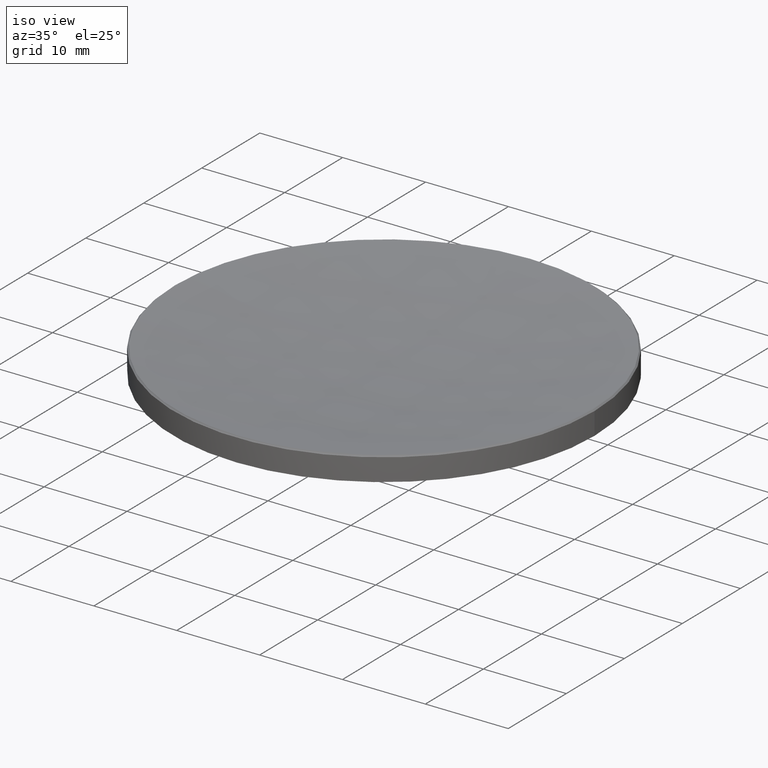
[diagram: clean part render]
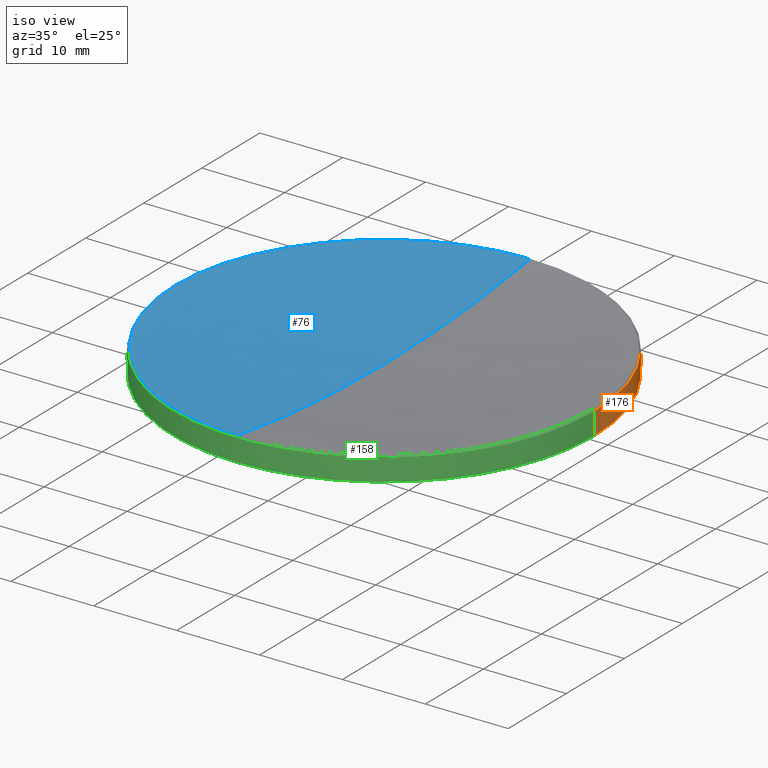
[diagram: same view with three faces highlighted in distinct colors, each labeled with its STEP entity id]
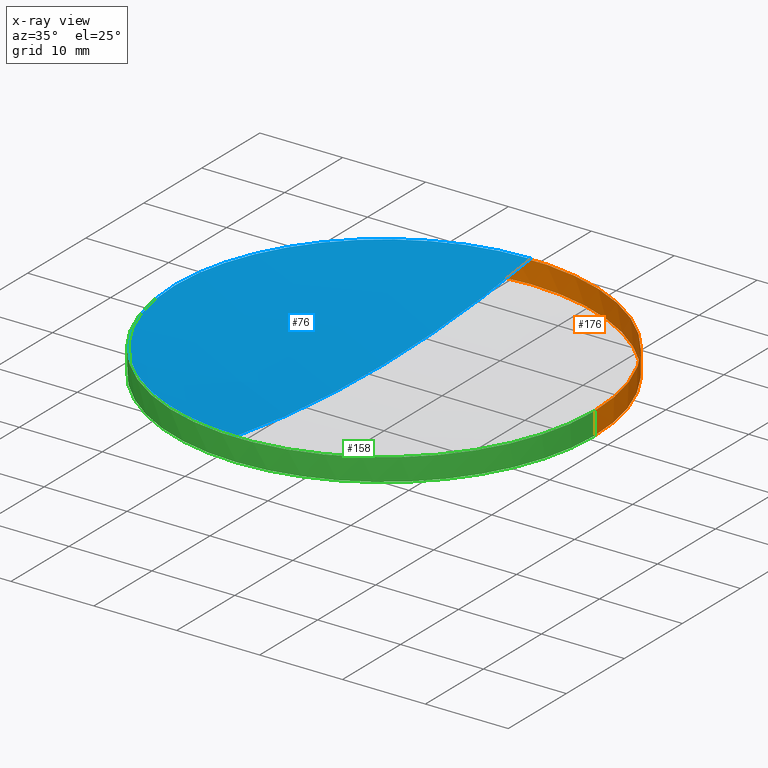
[diagram: x-ray of the same camera — body ghosted, the three highlighted faces saturated]
A machine part, iso view with three faces highlighted in distinct colors.
The next image is the same camera in x-ray (body ghosted, the three faces saturated) — at least one of them is partly hidden behind the body in this view.
Their STEP definitions:

[orange] entity #176 — the highlighted cylindrical surface (partial cylindrical patch) has radius 25.4 mm, axis along (-0, -0, -1).
#3 = EDGE_CURVE ( 'NONE', #21, #91, #188, .T. ) ;
#12 = DIRECTION ( 'NONE',  ( -0.000000000000000000, -0.000000000000000000, -1.000000000000000000 ) ) ;
#15 = CARTESIAN_POINT ( 'NONE',  ( -25.39999999999999858, 0.000000000000000000, 20.00000000000000000 ) ) ;
#20 = AXIS2_PLACEMENT_3D ( 'NONE', #270, #249, #204 ) ;
#21 = VERTEX_POINT ( 'NONE', #232 ) ;
#24 = ORIENTED_EDGE ( 'NONE', *, *, #271, .T. ) ;
#31 = AXIS2_PLACEMENT_3D ( 'NONE', #175, #81, #182 ) ;
#33 = CARTESIAN_POINT ( 'NONE',  ( 25.39999999999999503, 3.110602869834276471E-15, 13.00000000000000000 ) ) ;
#36 = VERTEX_POINT ( 'NONE', #33 ) ;
#45 = EDGE_CURVE ( 'NONE', #74, #36, #260, .T. ) ;
#47 = CARTESIAN_POINT ( 'NONE',  ( 0.000000000000000000, 0.000000000000000000, 20.00000000000000000 ) ) ;
#59 = CIRCLE ( 'NONE', #227, 25.39999999999999858 ) ;
#73 = ORIENTED_EDGE ( 'NONE', *, *, #3, .F. ) ;
#74 = VERTEX_POINT ( 'NONE', #210 ) ;
#79 = DIRECTION ( 'NONE',  ( -0.000000000000000000, -0.000000000000000000, -1.000000000000000000 ) ) ;
#81 = DIRECTION ( 'NONE',  ( -0.000000000000000000, -0.000000000000000000, 1.000000000000000000 ) ) ;
#91 = VERTEX_POINT ( 'NONE', #94 ) ;
#94 = CARTESIAN_POINT ( 'NONE',  ( -25.39999999999999503, 0.000000000000000000, 13.00000000000000000 ) ) ;
#107 = CIRCLE ( 'NONE', #31, 25.39999999999999503 ) ;
#115 = EDGE_CURVE ( 'NONE', #21, #74, #59, .T. ) ;
#139 = CIRCLE ( 'NONE', #20, 25.39999999999999503 ) ;
#144 = DIRECTION ( 'NONE',  ( 1.000000000000000000, 0.000000000000000000, 0.000000000000000000 ) ) ;
#146 = CARTESIAN_POINT ( 'NONE',  ( 0.000000000000000000, 0.000000000000000000, 15.69999999999996376 ) ) ;
#150 = VECTOR ( 'NONE', #211, 1000.000000000000000 ) ;
#173 = DIRECTION ( 'NONE',  ( 0.000000000000000000, 0.000000000000000000, -1.000000000000000000 ) ) ;
#175 = CARTESIAN_POINT ( 'NONE',  ( 0.000000000000000000, 0.000000000000000000, 13.00000000000000000 ) ) ;
#176 = ADVANCED_FACE ( 'NONE', ( #218 ), #198, .T. ) ;
#182 = DIRECTION ( 'NONE',  ( 1.000000000000000000, 0.000000000000000000, 0.000000000000000000 ) ) ;
#188 = LINE ( 'NONE', #15, #272 ) ;
#198 = CYLINDRICAL_SURFACE ( 'NONE', #278, 25.39999999999999858 ) ;
#204 = DIRECTION ( 'NONE',  ( 1.000000000000000000, 0.000000000000000000, 0.000000000000000000 ) ) ;
#210 = CARTESIAN_POINT ( 'NONE',  ( 25.39999999999999858, 3.110602869834276865E-15, 15.69999999999996376 ) ) ;
#211 = DIRECTION ( 'NONE',  ( -0.000000000000000000, -0.000000000000000000, -1.000000000000000000 ) ) ;
#218 = FACE_OUTER_BOUND ( 'NONE', #219, .T. ) ;
#219 = EDGE_LOOP ( 'NONE', ( #235, #264, #261, #24, #73 ) ) ;
#223 = DIRECTION ( 'NONE',  ( -1.000000000000000000, 0.000000000000000000, 0.000000000000000000 ) ) ;
#225 = CARTESIAN_POINT ( 'NONE',  ( 0.000000000000000000, 25.39999999999998437, 12.99999999999999822 ) ) ;
#227 = AXIS2_PLACEMENT_3D ( 'NONE', #146, #173, #144 ) ;
#230 = EDGE_CURVE ( 'NONE', #36, #240, #139, .T. ) ;
#232 = CARTESIAN_POINT ( 'NONE',  ( -25.39999999999999858, 0.000000000000000000, 15.69999999999996376 ) ) ;
#235 = ORIENTED_EDGE ( 'NONE', *, *, #115, .T. ) ;
#240 = VERTEX_POINT ( 'NONE', #225 ) ;
#249 = DIRECTION ( 'NONE',  ( -0.000000000000000000, -0.000000000000000000, 1.000000000000000000 ) ) ;
#260 = LINE ( 'NONE', #276, #150 ) ;
#261 = ORIENTED_EDGE ( 'NONE', *, *, #230, .T. ) ;
#264 = ORIENTED_EDGE ( 'NONE', *, *, #45, .T. ) ;
#270 = CARTESIAN_POINT ( 'NONE',  ( 0.000000000000000000, 0.000000000000000000, 13.00000000000000000 ) ) ;
#271 = EDGE_CURVE ( 'NONE', #240, #91, #107, .T. ) ;
#272 = VECTOR ( 'NONE', #12, 1000.000000000000000 ) ;
#276 = CARTESIAN_POINT ( 'NONE',  ( 25.39999999999999858, 3.110602869834276865E-15, 20.00000000000000000 ) ) ;
#278 = AXIS2_PLACEMENT_3D ( 'NONE', #47, #79, #223 ) ;

[blue] entity #76 — the highlighted spherical surface has radius 171.6 mm.
#5 = EDGE_CURVE ( 'NONE', #98, #58, #267, .T. ) ;
#7 = AXIS2_PLACEMENT_3D ( 'NONE', #14, #265, #189 ) ;
#14 = CARTESIAN_POINT ( 'NONE',  ( 0.000000000000000000, 0.000000000000000000, 185.6097522242018840 ) ) ;
#17 = AXIS2_PLACEMENT_3D ( 'NONE', #191, #71, #209 ) ;
#22 = CARTESIAN_POINT ( 'NONE',  ( 0.000000000000000000, 0.000000000000000000, 185.6097522242018840 ) ) ;
#27 = EDGE_CURVE ( 'NONE', #58, #192, #95, .T. ) ;
#30 = AXIS2_PLACEMENT_3D ( 'NONE', #80, #106, #62 ) ;
#54 = CARTESIAN_POINT ( 'NONE',  ( -25.22595727592940662, 0.000000000000000000, 15.87404272407055927 ) ) ;
#56 = ORIENTED_EDGE ( 'NONE', *, *, #27, .T. ) ;
#58 = VERTEX_POINT ( 'NONE', #54 ) ;
#62 = DIRECTION ( 'NONE',  ( 0.000000000000000000, 0.000000000000000000, -1.000000000000000000 ) ) ;
#71 = DIRECTION ( 'NONE',  ( -0.000000000000000000, -0.000000000000000000, 1.000000000000000000 ) ) ;
#76 = ADVANCED_FACE ( 'NONE', ( #241 ), #169, .F. ) ;
#80 = CARTESIAN_POINT ( 'NONE',  ( 0.000000000000000000, 0.000000000000000000, 185.6097522242018840 ) ) ;
#89 = CIRCLE ( 'NONE', #108, 171.5999999999999659 ) ;
#95 = CIRCLE ( 'NONE', #17, 25.22595727592940662 ) ;
#98 = VERTEX_POINT ( 'NONE', #99 ) ;
#99 = CARTESIAN_POINT ( 'NONE',  ( 0.000000000000000000, 25.22595727592939951, 15.87404272407055927 ) ) ;
#105 = AXIS2_PLACEMENT_3D ( 'NONE', #167, #234, #141 ) ;
#106 = DIRECTION ( 'NONE',  ( 1.000000000000000000, 0.000000000000000000, 0.000000000000000000 ) ) ;
#108 = AXIS2_PLACEMENT_3D ( 'NONE', #22, #151, #236 ) ;
#116 = VERTEX_POINT ( 'NONE', #220 ) ;
#120 = ORIENTED_EDGE ( 'NONE', *, *, #5, .T. ) ;
#130 = CARTESIAN_POINT ( 'NONE',  ( -3.089288783339482875E-15, -25.22595727592939951, 15.87404272407055927 ) ) ;
#131 = EDGE_CURVE ( 'NONE', #116, #192, #89, .T. ) ;
#141 = DIRECTION ( 'NONE',  ( 1.000000000000000000, 0.000000000000000000, 0.000000000000000000 ) ) ;
#151 = DIRECTION ( 'NONE',  ( -1.000000000000000000, 1.224646799147353207E-16, 0.000000000000000000 ) ) ;
#154 = CIRCLE ( 'NONE', #30, 171.5999999999999659 ) ;
#165 = EDGE_LOOP ( 'NONE', ( #174, #201, #120, #56 ) ) ;
#167 = CARTESIAN_POINT ( 'NONE',  ( 0.000000000000000000, 0.000000000000000000, 15.87404272407055927 ) ) ;
#169 = SPHERICAL_SURFACE ( 'NONE', #7, 171.5999999999999659 ) ;
#174 = ORIENTED_EDGE ( 'NONE', *, *, #131, .F. ) ;
#189 = DIRECTION ( 'NONE',  ( 0.000000000000000000, 1.000000000000000000, 0.000000000000000000 ) ) ;
#191 = CARTESIAN_POINT ( 'NONE',  ( 0.000000000000000000, 0.000000000000000000, 15.87404272407055927 ) ) ;
#192 = VERTEX_POINT ( 'NONE', #130 ) ;
#201 = ORIENTED_EDGE ( 'NONE', *, *, #202, .T. ) ;
#202 = EDGE_CURVE ( 'NONE', #116, #98, #154, .T. ) ;
#209 = DIRECTION ( 'NONE',  ( 1.000000000000000000, 0.000000000000000000, 0.000000000000000000 ) ) ;
#220 = CARTESIAN_POINT ( 'NONE',  ( 0.000000000000000000, 1.050746953668428865E-14, 14.00975222420192168 ) ) ;
#234 = DIRECTION ( 'NONE',  ( -0.000000000000000000, -0.000000000000000000, 1.000000000000000000 ) ) ;
#236 = DIRECTION ( 'NONE',  ( -1.224646799147353207E-16, -1.000000000000000000, 0.000000000000000000 ) ) ;
#241 = FACE_OUTER_BOUND ( 'NONE', #165, .T. ) ;
#265 = DIRECTION ( 'NONE',  ( -1.000000000000000000, 0.000000000000000000, 0.000000000000000000 ) ) ;
#267 = CIRCLE ( 'NONE', #105, 25.22595727592940662 ) ;

[green] entity #158 — the highlighted cylindrical surface (partial cylindrical patch) has radius 25.4 mm, axis along (-0, -0, -1).
#1 = ORIENTED_EDGE ( 'NONE', *, *, #93, .T. ) ;
#3 = EDGE_CURVE ( 'NONE', #21, #91, #188, .T. ) ;
#6 = CARTESIAN_POINT ( 'NONE',  ( 0.000000000000000000, 0.000000000000000000, 13.00000000000000000 ) ) ;
#12 = DIRECTION ( 'NONE',  ( -0.000000000000000000, -0.000000000000000000, -1.000000000000000000 ) ) ;
#15 = CARTESIAN_POINT ( 'NONE',  ( -25.39999999999999858, 0.000000000000000000, 20.00000000000000000 ) ) ;
#16 = ORIENTED_EDGE ( 'NONE', *, *, #257, .T. ) ;
#19 = DIRECTION ( 'NONE',  ( -1.000000000000000000, 0.000000000000000000, 0.000000000000000000 ) ) ;
#21 = VERTEX_POINT ( 'NONE', #232 ) ;
#26 = CARTESIAN_POINT ( 'NONE',  ( -3.110602869834275682E-15, -25.39999999999998437, 12.99999999999999822 ) ) ;
#28 = DIRECTION ( 'NONE',  ( -0.000000000000000000, -0.000000000000000000, 1.000000000000000000 ) ) ;
#33 = CARTESIAN_POINT ( 'NONE',  ( 25.39999999999999503, 3.110602869834276471E-15, 13.00000000000000000 ) ) ;
#36 = VERTEX_POINT ( 'NONE', #33 ) ;
#37 = CYLINDRICAL_SURFACE ( 'NONE', #179, 25.39999999999999858 ) ;
#40 = CARTESIAN_POINT ( 'NONE',  ( 0.000000000000000000, 0.000000000000000000, 20.00000000000000000 ) ) ;
#43 = CIRCLE ( 'NONE', #83, 25.39999999999999503 ) ;
#45 = EDGE_CURVE ( 'NONE', #74, #36, #260, .T. ) ;
#50 = AXIS2_PLACEMENT_3D ( 'NONE', #64, #61, #160 ) ;
#51 = ORIENTED_EDGE ( 'NONE', *, *, #45, .F. ) ;
#57 = DIRECTION ( 'NONE',  ( 0.000000000000000000, 0.000000000000000000, -1.000000000000000000 ) ) ;
#61 = DIRECTION ( 'NONE',  ( -0.000000000000000000, -0.000000000000000000, 1.000000000000000000 ) ) ;
#64 = CARTESIAN_POINT ( 'NONE',  ( 0.000000000000000000, 0.000000000000000000, 13.00000000000000000 ) ) ;
#74 = VERTEX_POINT ( 'NONE', #210 ) ;
#83 = AXIS2_PLACEMENT_3D ( 'NONE', #6, #28, #152 ) ;
#91 = VERTEX_POINT ( 'NONE', #94 ) ;
#93 = EDGE_CURVE ( 'NONE', #74, #21, #187, .T. ) ;
#94 = CARTESIAN_POINT ( 'NONE',  ( -25.39999999999999503, 0.000000000000000000, 13.00000000000000000 ) ) ;
#121 = DIRECTION ( 'NONE',  ( -0.000000000000000000, -0.000000000000000000, -1.000000000000000000 ) ) ;
#150 = VECTOR ( 'NONE', #211, 1000.000000000000000 ) ;
#152 = DIRECTION ( 'NONE',  ( 1.000000000000000000, 0.000000000000000000, 0.000000000000000000 ) ) ;
#158 = ADVANCED_FACE ( 'NONE', ( #213 ), #37, .T. ) ;
#160 = DIRECTION ( 'NONE',  ( 1.000000000000000000, 0.000000000000000000, 0.000000000000000000 ) ) ;
#179 = AXIS2_PLACEMENT_3D ( 'NONE', #40, #121, #19 ) ;
#184 = CIRCLE ( 'NONE', #50, 25.39999999999999503 ) ;
#187 = CIRCLE ( 'NONE', #205, 25.39999999999999858 ) ;
#188 = LINE ( 'NONE', #15, #272 ) ;
#194 = VERTEX_POINT ( 'NONE', #26 ) ;
#195 = DIRECTION ( 'NONE',  ( 1.000000000000000000, 0.000000000000000000, 0.000000000000000000 ) ) ;
#205 = AXIS2_PLACEMENT_3D ( 'NONE', #262, #57, #195 ) ;
#210 = CARTESIAN_POINT ( 'NONE',  ( 25.39999999999999858, 3.110602869834276865E-15, 15.69999999999996376 ) ) ;
#211 = DIRECTION ( 'NONE',  ( -0.000000000000000000, -0.000000000000000000, -1.000000000000000000 ) ) ;
#213 = FACE_OUTER_BOUND ( 'NONE', #268, .T. ) ;
#232 = CARTESIAN_POINT ( 'NONE',  ( -25.39999999999999858, 0.000000000000000000, 15.69999999999996376 ) ) ;
#237 = EDGE_CURVE ( 'NONE', #194, #36, #184, .T. ) ;
#256 = ORIENTED_EDGE ( 'NONE', *, *, #237, .T. ) ;
#257 = EDGE_CURVE ( 'NONE', #91, #194, #43, .T. ) ;
#260 = LINE ( 'NONE', #276, #150 ) ;
#262 = CARTESIAN_POINT ( 'NONE',  ( 0.000000000000000000, 0.000000000000000000, 15.69999999999996376 ) ) ;
#268 = EDGE_LOOP ( 'NONE', ( #51, #1, #280, #16, #256 ) ) ;
#272 = VECTOR ( 'NONE', #12, 1000.000000000000000 ) ;
#276 = CARTESIAN_POINT ( 'NONE',  ( 25.39999999999999858, 3.110602869834276865E-15, 20.00000000000000000 ) ) ;
#280 = ORIENTED_EDGE ( 'NONE', *, *, #3, .T. ) ;